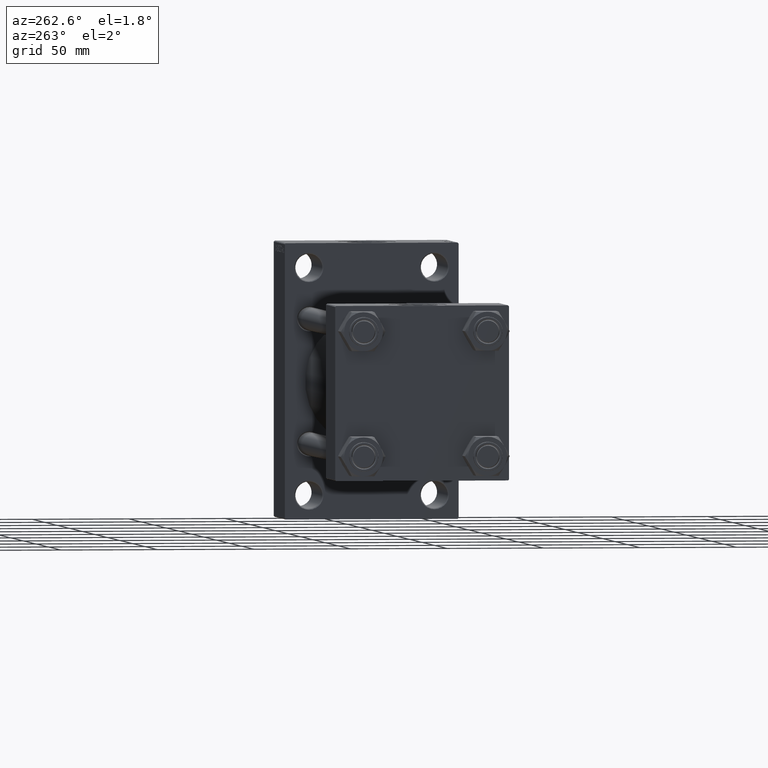
[diagram: clean part render]
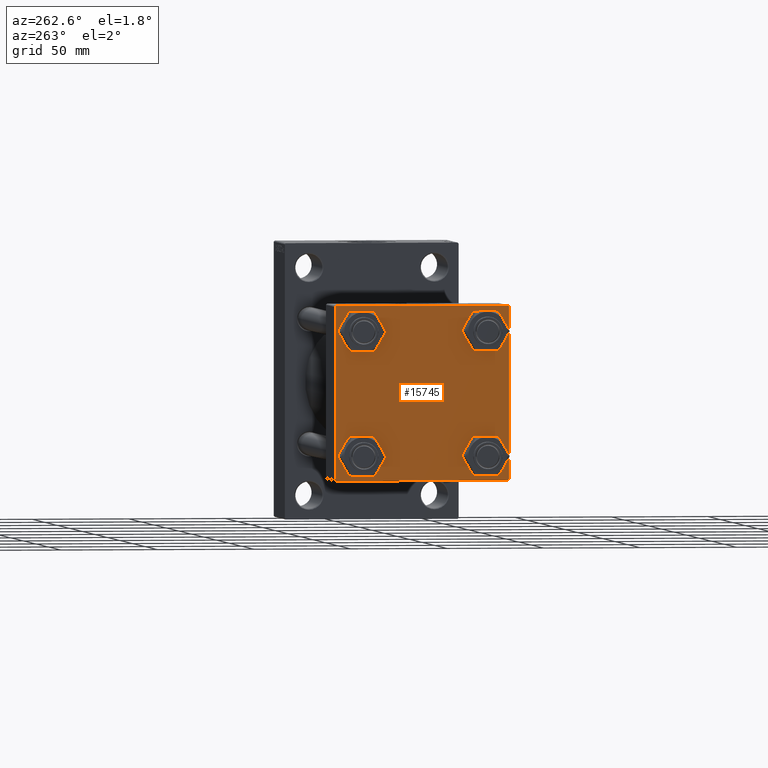
[diagram: same view with one face highlighted and labeled with its STEP entity id]
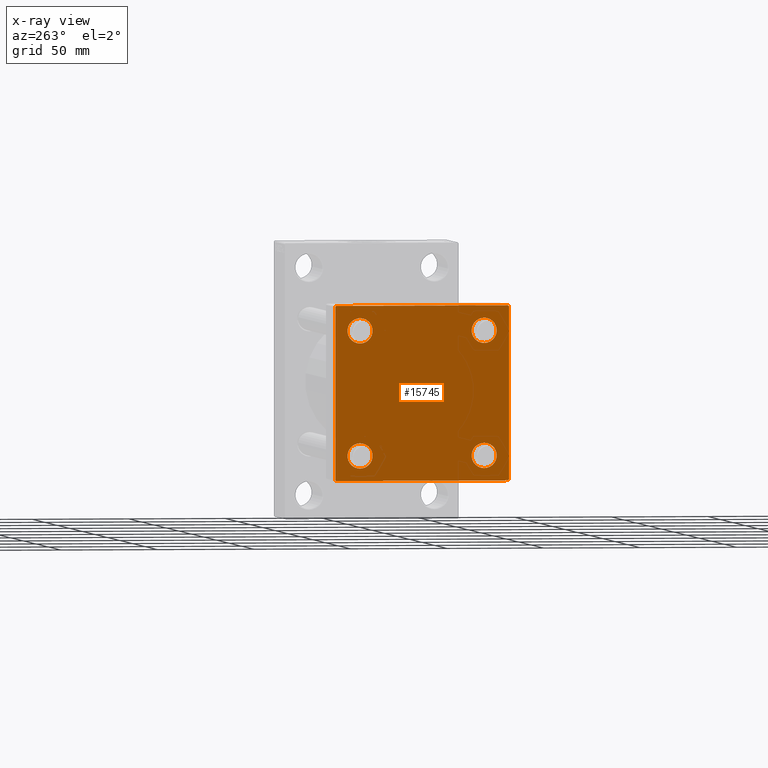
[diagram: x-ray of the same camera — body ghosted, the highlighted face saturated]
A machine part, auxiliary view. The second image highlights one B-rep face of the part: STEP entity #15745.
The next image is the same camera in x-ray: the body ghosted, the highlighted face saturated — about 0% of this face is hidden behind the body in this view.
In plain terms, the highlighted planar face has unit normal (-1, 0, 0).
Its self-contained STEP definition (entity closure, byte-faithful):
#231 = DIRECTION ( 'NONE',  ( 0.000000000000000000, -1.000000000000000000, -1.541976423090495387E-16 ) ) ;
#380 = VECTOR ( 'NONE', #33750, 1000.000000000000114 ) ;
#442 = EDGE_CURVE ( 'NONE', #13445, #30367, #40226, .T. ) ;
#1173 = CARTESIAN_POINT ( 'NONE',  ( 0.000000000000000000, -32.14999999999997726, 32.15000000000001279 ) ) ;
#2723 = CARTESIAN_POINT ( 'NONE',  ( 0.000000000000000000, 32.14999999999999147, -25.65000000000002700 ) ) ;
#2762 = VERTEX_POINT ( 'NONE', #16416 ) ;
#3317 = CARTESIAN_POINT ( 'NONE',  ( 0.000000000000000000, 44.99999999999998579, 45.00000000000001421 ) ) ;
#3439 = CARTESIAN_POINT ( 'NONE',  ( 0.000000000000000000, -32.14999999999997726, 32.15000000000001279 ) ) ;
#3513 = CARTESIAN_POINT ( 'NONE',  ( 0.000000000000000000, 44.74999999999998579, -44.74999999999998579 ) ) ;
#3654 = CIRCLE ( 'NONE', #31479, 6.499999999999977796 ) ;
#3664 = EDGE_CURVE ( 'NONE', #2762, #6268, #17697, .T. ) ;
#3873 = CARTESIAN_POINT ( 'NONE',  ( 0.000000000000000000, 44.99999999999998579, 45.00000000000001421 ) ) ;
#4668 = DIRECTION ( 'NONE',  ( 0.000000000000000000, 0.000000000000000000, 1.000000000000000000 ) ) ;
#4714 = LINE ( 'NONE', #24547, #9833 ) ;
#4993 = EDGE_CURVE ( 'NONE', #13445, #31309, #33657, .T. ) ;
#5116 = ORIENTED_EDGE ( 'NONE', *, *, #18479, .T. ) ;
#5590 = AXIS2_PLACEMENT_3D ( 'NONE', #10745, #40289, #33258 ) ;
#6006 = VECTOR ( 'NONE', #34131, 1000.000000000000000 ) ;
#6268 = VERTEX_POINT ( 'NONE', #32128 ) ;
#6330 = CIRCLE ( 'NONE', #40326, 6.499999999999977796 ) ;
#6473 = CARTESIAN_POINT ( 'NONE',  ( 0.000000000000000000, -45.00000000000000711, 44.49999999999997158 ) ) ;
#6826 = DIRECTION ( 'NONE',  ( -0.000000000000000000, 0.7071067811865425767, 0.7071067811865524577 ) ) ;
#6905 = DIRECTION ( 'NONE',  ( 0.000000000000000000, 0.000000000000000000, 1.000000000000000000 ) ) ;
#6980 = CIRCLE ( 'NONE', #11629, 6.500000000000019540 ) ;
#7373 = VERTEX_POINT ( 'NONE', #2723 ) ;
#7847 = LINE ( 'NONE', #18735, #380 ) ;
#8471 = ORIENTED_EDGE ( 'NONE', *, *, #39705, .T. ) ;
#9012 = ORIENTED_EDGE ( 'NONE', *, *, #43956, .T. ) ;
#9184 = AXIS2_PLACEMENT_3D ( 'NONE', #3439, #39768, #25004 ) ;
#9833 = VECTOR ( 'NONE', #32051, 1000.000000000000000 ) ;
#10250 = ORIENTED_EDGE ( 'NONE', *, *, #32910, .F. ) ;
#10438 = ORIENTED_EDGE ( 'NONE', *, *, #31079, .T. ) ;
#10528 = DIRECTION ( 'NONE',  ( 1.000000000000000000, -0.000000000000000000, 0.000000000000000000 ) ) ;
#10745 = CARTESIAN_POINT ( 'NONE',  ( 0.000000000000000000, 0.000000000000000000, 0.000000000000000000 ) ) ;
#11629 = AXIS2_PLACEMENT_3D ( 'NONE', #1173, #34579, #12061 ) ;
#12061 = DIRECTION ( 'NONE',  ( 0.000000000000000000, 0.000000000000000000, 1.000000000000000000 ) ) ;
#13038 = VERTEX_POINT ( 'NONE', #16462 ) ;
#13445 = VERTEX_POINT ( 'NONE', #6473 ) ;
#14025 = AXIS2_PLACEMENT_3D ( 'NONE', #47821, #28961, #44192 ) ;
#14128 = VECTOR ( 'NONE', #231, 1000.000000000000000 ) ;
#14946 = DIRECTION ( 'NONE',  ( 1.000000000000000000, -0.000000000000000000, 0.000000000000000000 ) ) ;
#15251 = CARTESIAN_POINT ( 'NONE',  ( 0.000000000000000000, -45.00000000000000711, 45.00000000000000000 ) ) ;
#15415 = VERTEX_POINT ( 'NONE', #44682 ) ;
#15541 = AXIS2_PLACEMENT_3D ( 'NONE', #26217, #33483, #4668 ) ;
#15721 = ORIENTED_EDGE ( 'NONE', *, *, #38486, .T. ) ;
#15745 = ADVANCED_FACE ( 'NONE', ( #25524, #29381, #44139, #21416, #22120 ), #18485, .T. ) ;
#15977 = ORIENTED_EDGE ( 'NONE', *, *, #25337, .T. ) ;
#16416 = CARTESIAN_POINT ( 'NONE',  ( 0.000000000000000000, -32.14999999999997726, 25.64999999999999147 ) ) ;
#16462 = CARTESIAN_POINT ( 'NONE',  ( 0.000000000000000000, -32.14999999999997726, -25.65000000000003411 ) ) ;
#17697 = CIRCLE ( 'NONE', #9184, 6.500000000000019540 ) ;
#17805 = CARTESIAN_POINT ( 'NONE',  ( 0.000000000000000000, 32.14999999999999147, -32.15000000000000568 ) ) ;
#18077 = DIRECTION ( 'NONE',  ( 0.000000000000000000, 0.000000000000000000, -1.000000000000000000 ) ) ;
#18387 = EDGE_LOOP ( 'NONE', ( #15977, #37028 ) ) ;
#18479 = EDGE_CURVE ( 'NONE', #15415, #20099, #37156, .T. ) ;
#18485 = PLANE ( 'NONE',  #5590 ) ;
#18524 = LINE ( 'NONE', #44417, #38275 ) ;
#18735 = CARTESIAN_POINT ( 'NONE',  ( 0.000000000000000000, 44.74999999999999289, 44.74999999999999289 ) ) ;
#19175 = CARTESIAN_POINT ( 'NONE',  ( 0.000000000000000000, 32.14999999999999147, 25.65000000000002700 ) ) ;
#19942 = ORIENTED_EDGE ( 'NONE', *, *, #24883, .T. ) ;
#20021 = CARTESIAN_POINT ( 'NONE',  ( 0.000000000000000000, -32.14999999999997726, -32.15000000000001279 ) ) ;
#20099 = VERTEX_POINT ( 'NONE', #34846 ) ;
#20499 = DIRECTION ( 'NONE',  ( 0.000000000000000000, 0.000000000000000000, 1.000000000000000000 ) ) ;
#20855 = CARTESIAN_POINT ( 'NONE',  ( 0.000000000000000000, -44.49999999999995737, 45.00000000000000000 ) ) ;
#21416 = FACE_BOUND ( 'NONE', #47045, .T. ) ;
#22120 = FACE_OUTER_BOUND ( 'NONE', #37172, .T. ) ;
#22259 = VERTEX_POINT ( 'NONE', #33720 ) ;
#22385 = DIRECTION ( 'NONE',  ( -0.000000000000000000, -0.7071067811865474617, -0.7071067811865474617 ) ) ;
#22700 = CARTESIAN_POINT ( 'NONE',  ( 0.000000000000000000, 44.49999999999998579, 45.00000000000001421 ) ) ;
#22701 = ORIENTED_EDGE ( 'NONE', *, *, #442, .T. ) ;
#24547 = CARTESIAN_POINT ( 'NONE',  ( 0.000000000000000000, 44.99999999999998579, -44.99999999999998579 ) ) ;
#24883 = EDGE_CURVE ( 'NONE', #6268, #2762, #6980, .T. ) ;
#25004 = DIRECTION ( 'NONE',  ( 0.000000000000000000, 0.000000000000000000, 1.000000000000000000 ) ) ;
#25122 = VECTOR ( 'NONE', #18077, 1000.000000000000000 ) ;
#25290 = CARTESIAN_POINT ( 'NONE',  ( 0.000000000000000000, 44.99999999999998579, 44.50000000000001421 ) ) ;
#25337 = EDGE_CURVE ( 'NONE', #7373, #34137, #31758, .T. ) ;
#25524 = FACE_BOUND ( 'NONE', #28576, .T. ) ;
#26217 = CARTESIAN_POINT ( 'NONE',  ( 0.000000000000000000, 32.14999999999999147, -32.15000000000000568 ) ) ;
#26251 = EDGE_CURVE ( 'NONE', #34137, #7373, #39534, .T. ) ;
#26848 = EDGE_CURVE ( 'NONE', #29509, #44617, #31030, .T. ) ;
#28576 = EDGE_LOOP ( 'NONE', ( #19942, #31494 ) ) ;
#28961 = DIRECTION ( 'NONE',  ( 1.000000000000000000, -0.000000000000000000, 0.000000000000000000 ) ) ;
#29381 = FACE_BOUND ( 'NONE', #33644, .T. ) ;
#29509 = VERTEX_POINT ( 'NONE', #19175 ) ;
#29955 = VECTOR ( 'NONE', #6826, 1000.000000000000114 ) ;
#30367 = VERTEX_POINT ( 'NONE', #20855 ) ;
#30865 = DIRECTION ( 'NONE',  ( 1.000000000000000000, -0.000000000000000000, 0.000000000000000000 ) ) ;
#31030 = CIRCLE ( 'NONE', #14025, 6.499999999999977796 ) ;
#31079 = EDGE_CURVE ( 'NONE', #22259, #13038, #6330, .T. ) ;
#31104 = DIRECTION ( 'NONE',  ( 0.000000000000000000, 0.000000000000000000, 1.000000000000000000 ) ) ;
#31309 = VERTEX_POINT ( 'NONE', #44191 ) ;
#31479 = AXIS2_PLACEMENT_3D ( 'NONE', #39079, #30865, #31104 ) ;
#31494 = ORIENTED_EDGE ( 'NONE', *, *, #3664, .T. ) ;
#31758 = CIRCLE ( 'NONE', #41804, 6.499999999999977796 ) ;
#32051 = DIRECTION ( 'NONE',  ( 0.000000000000000000, -1.000000000000000000, -1.541976423090495633E-16 ) ) ;
#32128 = CARTESIAN_POINT ( 'NONE',  ( 0.000000000000000000, -32.14999999999997726, 38.65000000000003411 ) ) ;
#32492 = CARTESIAN_POINT ( 'NONE',  ( -0.000000000000000000, -44.75000000000029843, 44.74999999999967315 ) ) ;
#32646 = CARTESIAN_POINT ( 'NONE',  ( 0.000000000000000000, 32.14999999999999147, 32.15000000000000568 ) ) ;
#32910 = EDGE_CURVE ( 'NONE', #42460, #30367, #33175, .T. ) ;
#33175 = LINE ( 'NONE', #3873, #14128 ) ;
#33258 = DIRECTION ( 'NONE',  ( -0.000000000000000000, 0.000000000000000000, 1.000000000000000000 ) ) ;
#33481 = CARTESIAN_POINT ( 'NONE',  ( 0.000000000000000000, -44.49999999999995737, -45.00000000000000000 ) ) ;
#33483 = DIRECTION ( 'NONE',  ( 1.000000000000000000, -0.000000000000000000, 0.000000000000000000 ) ) ;
#33644 = EDGE_LOOP ( 'NONE', ( #38882, #10438 ) ) ;
#33657 = LINE ( 'NONE', #15251, #6006 ) ;
#33720 = CARTESIAN_POINT ( 'NONE',  ( 0.000000000000000000, -32.14999999999997726, -38.64999999999999147 ) ) ;
#33750 = DIRECTION ( 'NONE',  ( 0.000000000000000000, 0.7071067811865474617, -0.7071067811865474617 ) ) ;
#33864 = VERTEX_POINT ( 'NONE', #33481 ) ;
#33866 = VECTOR ( 'NONE', #22385, 1000.000000000000114 ) ;
#34131 = DIRECTION ( 'NONE',  ( 0.000000000000000000, 7.709882115452476934E-17, -1.000000000000000000 ) ) ;
#34137 = VERTEX_POINT ( 'NONE', #37232 ) ;
#34579 = DIRECTION ( 'NONE',  ( 1.000000000000000000, -0.000000000000000000, 0.000000000000000000 ) ) ;
#34846 = CARTESIAN_POINT ( 'NONE',  ( 0.000000000000000000, 44.49999999999998579, -44.99999999999998579 ) ) ;
#36334 = ORIENTED_EDGE ( 'NONE', *, *, #44320, .T. ) ;
#36490 = LINE ( 'NONE', #3317, #25122 ) ;
#37028 = ORIENTED_EDGE ( 'NONE', *, *, #26251, .T. ) ;
#37156 = LINE ( 'NONE', #3513, #33866 ) ;
#37172 = EDGE_LOOP ( 'NONE', ( #15721, #5116, #36334, #42619, #46963, #22701, #10250, #8471 ) ) ;
#37232 = CARTESIAN_POINT ( 'NONE',  ( 0.000000000000000000, 32.14999999999999147, -38.64999999999998437 ) ) ;
#37918 = VERTEX_POINT ( 'NONE', #25290 ) ;
#38275 = VECTOR ( 'NONE', #42174, 1000.000000000000114 ) ;
#38486 = EDGE_CURVE ( 'NONE', #37918, #15415, #36490, .T. ) ;
#38882 = ORIENTED_EDGE ( 'NONE', *, *, #45146, .T. ) ;
#39079 = CARTESIAN_POINT ( 'NONE',  ( 0.000000000000000000, -32.14999999999997726, -32.15000000000001279 ) ) ;
#39534 = CIRCLE ( 'NONE', #15541, 6.499999999999977796 ) ;
#39705 = EDGE_CURVE ( 'NONE', #42460, #37918, #7847, .T. ) ;
#39768 = DIRECTION ( 'NONE',  ( 1.000000000000000000, -0.000000000000000000, 0.000000000000000000 ) ) ;
#39795 = ORIENTED_EDGE ( 'NONE', *, *, #26848, .T. ) ;
#40226 = LINE ( 'NONE', #32492, #29955 ) ;
#40289 = DIRECTION ( 'NONE',  ( -1.000000000000000000, 0.000000000000000000, -0.000000000000000000 ) ) ;
#40326 = AXIS2_PLACEMENT_3D ( 'NONE', #20021, #42056, #20499 ) ;
#41804 = AXIS2_PLACEMENT_3D ( 'NONE', #17805, #10528, #6905 ) ;
#42056 = DIRECTION ( 'NONE',  ( 1.000000000000000000, -0.000000000000000000, 0.000000000000000000 ) ) ;
#42174 = DIRECTION ( 'NONE',  ( 0.000000000000000000, -0.7071067811865474617, 0.7071067811865474617 ) ) ;
#42177 = CIRCLE ( 'NONE', #45239, 6.499999999999977796 ) ;
#42460 = VERTEX_POINT ( 'NONE', #22700 ) ;
#42619 = ORIENTED_EDGE ( 'NONE', *, *, #42750, .T. ) ;
#42750 = EDGE_CURVE ( 'NONE', #33864, #31309, #18524, .T. ) ;
#43956 = EDGE_CURVE ( 'NONE', #44617, #29509, #42177, .T. ) ;
#44139 = FACE_BOUND ( 'NONE', #18387, .T. ) ;
#44191 = CARTESIAN_POINT ( 'NONE',  ( 0.000000000000000000, -45.00000000000000000, -44.49999999999995737 ) ) ;
#44192 = DIRECTION ( 'NONE',  ( 0.000000000000000000, 0.000000000000000000, 1.000000000000000000 ) ) ;
#44320 = EDGE_CURVE ( 'NONE', #20099, #33864, #4714, .T. ) ;
#44417 = CARTESIAN_POINT ( 'NONE',  ( 0.000000000000000000, -44.74999999999998579, -44.74999999999998579 ) ) ;
#44617 = VERTEX_POINT ( 'NONE', #47224 ) ;
#44682 = CARTESIAN_POINT ( 'NONE',  ( 0.000000000000000000, 44.99999999999998579, -44.49999999999995737 ) ) ;
#45146 = EDGE_CURVE ( 'NONE', #13038, #22259, #3654, .T. ) ;
#45182 = DIRECTION ( 'NONE',  ( 0.000000000000000000, 0.000000000000000000, 1.000000000000000000 ) ) ;
#45239 = AXIS2_PLACEMENT_3D ( 'NONE', #32646, #14946, #45182 ) ;
#46963 = ORIENTED_EDGE ( 'NONE', *, *, #4993, .F. ) ;
#47045 = EDGE_LOOP ( 'NONE', ( #9012, #39795 ) ) ;
#47224 = CARTESIAN_POINT ( 'NONE',  ( 0.000000000000000000, 32.14999999999999147, 38.64999999999999147 ) ) ;
#47821 = CARTESIAN_POINT ( 'NONE',  ( 0.000000000000000000, 32.14999999999999147, 32.15000000000000568 ) ) ;